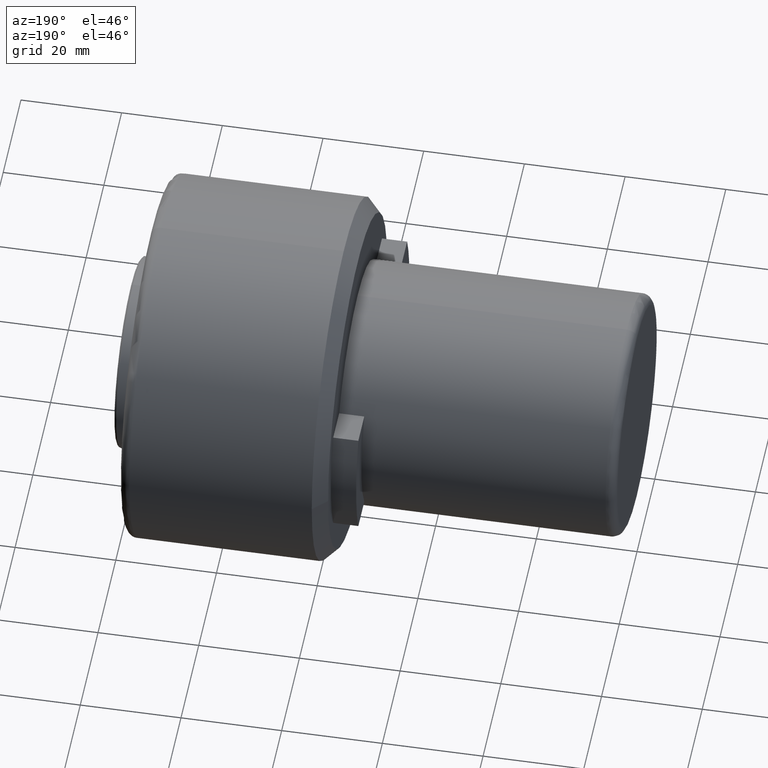
[diagram: clean part render]
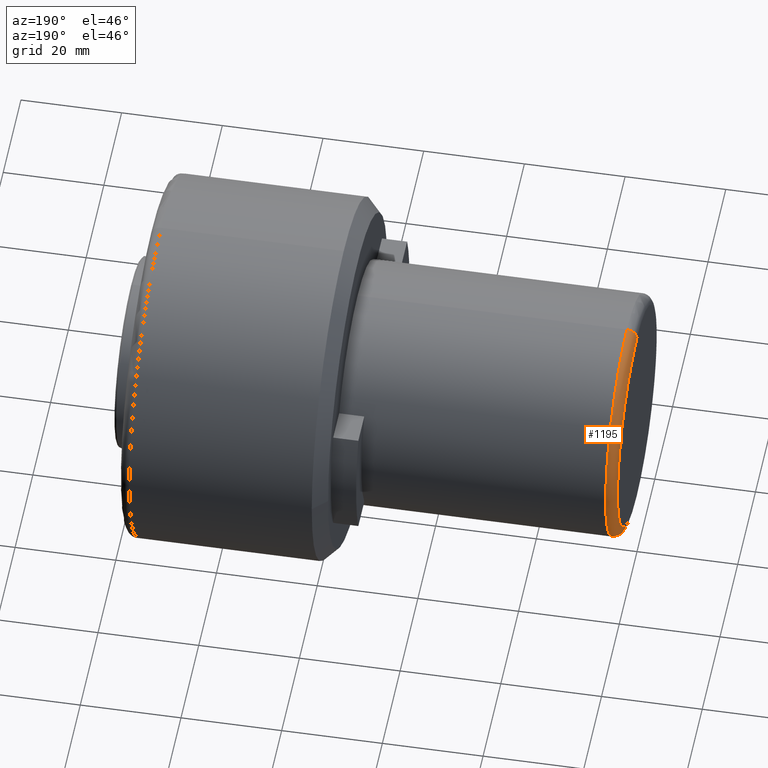
[diagram: same view with one face highlighted and labeled with its STEP entity id]
A machine part, auxiliary view. The second image highlights one B-rep face of the part: STEP entity #1195.
In plain terms, the highlighted toroidal blend (fillet) surface has major radius 22 mm and minor (blend) radius 2 mm.
Its self-contained STEP definition (entity closure, byte-faithful):
#42 = EDGE_CURVE ( 'NONE', #121, #1127, #834, .T. ) ;
#113 = CARTESIAN_POINT ( 'NONE',  ( 2.000000000000001800, 0.0000000000000000000, -7.733975497063264400E-015 ) ) ;
#121 = VERTEX_POINT ( 'NONE', #306 ) ;
#148 = TOROIDAL_SURFACE ( 'NONE', #575, 22.00000000000000000, 2.000000000000000000 ) ;
#150 = VERTEX_POINT ( 'NONE', #258 ) ;
#216 = DIRECTION ( 'NONE',  ( 0.0000000000000000000, 0.0000000000000000000, 1.000000000000000000 ) ) ;
#258 = CARTESIAN_POINT ( 'NONE',  ( 2.000000000000001800, 2.939152317953648700E-015, -24.00000000000001100 ) ) ;
#265 = CARTESIAN_POINT ( 'NONE',  ( 2.000000000000001800, 0.0000000000000000000, -7.733975497063264400E-015 ) ) ;
#306 = CARTESIAN_POINT ( 'NONE',  ( 0.0000000000000000000, 0.0000000000000000000, 21.99999999999999300 ) ) ;
#314 = ORIENTED_EDGE ( 'NONE', *, *, #745, .T. ) ;
#332 = ORIENTED_EDGE ( 'NONE', *, *, #830, .F. ) ;
#388 = CARTESIAN_POINT ( 'NONE',  ( 2.000000000000001800, 0.0000000000000000000, 23.99999999999999300 ) ) ;
#404 = CARTESIAN_POINT ( 'NONE',  ( 0.0000000000000000000, 0.0000000000000000000, -7.733975497063264400E-015 ) ) ;
#406 = ORIENTED_EDGE ( 'NONE', *, *, #1170, .F. ) ;
#459 = DIRECTION ( 'NONE',  ( 0.0000000000000000000, 1.000000000000000000, 1.224646799147353200E-016 ) ) ;
#474 = ORIENTED_EDGE ( 'NONE', *, *, #42, .F. ) ;
#482 = CARTESIAN_POINT ( 'NONE',  ( 2.000000000000001800, 0.0000000000000000000, 21.99999999999999300 ) ) ;
#484 = VERTEX_POINT ( 'NONE', #388 ) ;
#486 = DIRECTION ( 'NONE',  ( -1.000000000000000000, 0.0000000000000000000, 0.0000000000000000000 ) ) ;
#551 = AXIS2_PLACEMENT_3D ( 'NONE', #1093, #459, #1207 ) ;
#575 = AXIS2_PLACEMENT_3D ( 'NONE', #265, #486, #805 ) ;
#588 = DIRECTION ( 'NONE',  ( 0.0000000000000000000, 0.0000000000000000000, -1.000000000000000000 ) ) ;
#604 = DIRECTION ( 'NONE',  ( 0.0000000000000000000, 0.0000000000000000000, 1.000000000000000000 ) ) ;
#611 = DIRECTION ( 'NONE',  ( -1.000000000000000000, 0.0000000000000000000, 0.0000000000000000000 ) ) ;
#632 = CIRCLE ( 'NONE', #551, 2.000000000000001800 ) ;
#713 = AXIS2_PLACEMENT_3D ( 'NONE', #113, #1240, #604 ) ;
#723 = FACE_OUTER_BOUND ( 'NONE', #1149, .T. ) ;
#745 = EDGE_CURVE ( 'NONE', #150, #1127, #632, .T. ) ;
#805 = DIRECTION ( 'NONE',  ( 0.0000000000000000000, 0.0000000000000000000, 1.000000000000000000 ) ) ;
#830 = EDGE_CURVE ( 'NONE', #150, #484, #1359, .T. ) ;
#834 = CIRCLE ( 'NONE', #1005, 22.00000000000000000 ) ;
#943 = AXIS2_PLACEMENT_3D ( 'NONE', #482, #1226, #588 ) ;
#1005 = AXIS2_PLACEMENT_3D ( 'NONE', #404, #611, #216 ) ;
#1093 = CARTESIAN_POINT ( 'NONE',  ( 2.000000000000001800, 2.694222958124176800E-015, -22.00000000000000700 ) ) ;
#1127 = VERTEX_POINT ( 'NONE', #1137 ) ;
#1137 = CARTESIAN_POINT ( 'NONE',  ( 0.0000000000000000000, 2.816687638038912400E-015, -22.00000000000000700 ) ) ;
#1149 = EDGE_LOOP ( 'NONE', ( #332, #314, #474, #406 ) ) ;
#1170 = EDGE_CURVE ( 'NONE', #484, #121, #1375, .T. ) ;
#1195 = ADVANCED_FACE ( 'NONE', ( #723 ), #148, .T. ) ;
#1207 = DIRECTION ( 'NONE',  ( 0.0000000000000000000, -1.224646799147351500E-016, 1.000000000000000000 ) ) ;
#1226 = DIRECTION ( 'NONE',  ( 0.0000000000000000000, -1.000000000000000000, 0.0000000000000000000 ) ) ;
#1240 = DIRECTION ( 'NONE',  ( 1.000000000000000000, -0.0000000000000000000, -0.0000000000000000000 ) ) ;
#1359 = CIRCLE ( 'NONE', #713, 24.00000000000000000 ) ;
#1375 = CIRCLE ( 'NONE', #943, 2.000000000000001800 ) ;